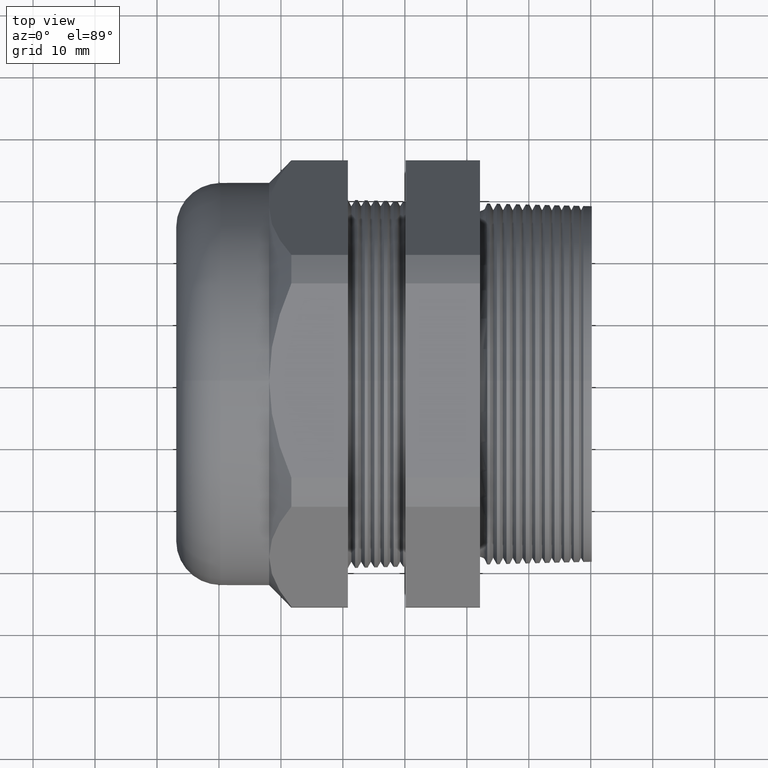
[diagram: clean part render]
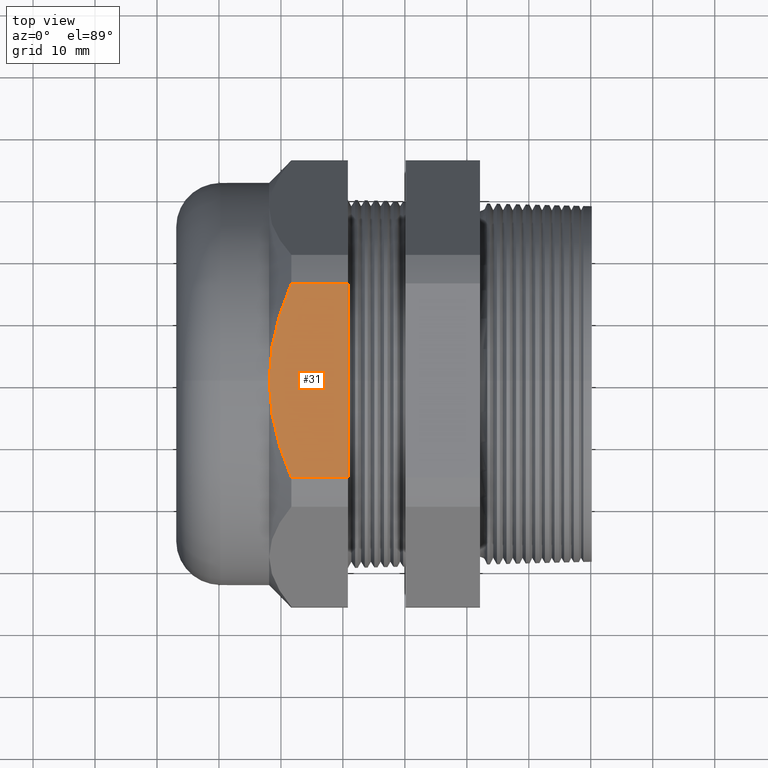
[diagram: same view with one face highlighted and labeled with its STEP entity id]
A machine part, top view. The second image highlights one B-rep face of the part: STEP entity #31.
In plain terms, the highlighted planar face has unit normal (0, 0, 1).
Its self-contained STEP definition (entity closure, byte-faithful):
#31 = ADVANCED_FACE ( 'NONE', ( #1600 ), #1599, .T. ) ;
#38 = EDGE_LOOP ( 'NONE', ( #211, #209, #162, #158, #150 ) ) ;
#149 = VERTEX_POINT ( 'NONE', #1818 ) ;
#150 = ORIENTED_EDGE ( 'NONE', *, *, #151, .F. ) ;
#151 = EDGE_CURVE ( 'NONE', #191, #149, #1817, .T. ) ;
#156 = EDGE_CURVE ( 'NONE', #149, #157, #1803, .T. ) ;
#157 = VERTEX_POINT ( 'NONE', #1799 ) ;
#158 = ORIENTED_EDGE ( 'NONE', *, *, #156, .F. ) ;
#161 = EDGE_CURVE ( 'NONE', #257, #157, #1860, .T. ) ;
#162 = ORIENTED_EDGE ( 'NONE', *, *, #161, .T. ) ;
#191 = VERTEX_POINT ( 'NONE', #1923 ) ;
#192 = EDGE_CURVE ( 'NONE', #191, #194, #1922, .T. ) ;
#194 = VERTEX_POINT ( 'NONE', #1918 ) ;
#209 = ORIENTED_EDGE ( 'NONE', *, *, #210, .T. ) ;
#210 = EDGE_CURVE ( 'NONE', #194, #257, #1955, .T. ) ;
#211 = ORIENTED_EDGE ( 'NONE', *, *, #192, .T. ) ;
#257 = VERTEX_POINT ( 'NONE', #2047 ) ;
#1595 = DIRECTION ( 'NONE',  ( 1.000000000000000000, 0.0000000000000000000, 0.0000000000000000000 ) ) ;
#1596 = DIRECTION ( 'NONE',  ( 0.0000000000000000000, 0.0000000000000000000, 1.000000000000000000 ) ) ;
#1597 = CARTESIAN_POINT ( 'NONE',  ( 0.4000000000000000800, -0.6166625008868301700, 1.280000000000000000 ) ) ;
#1598 = AXIS2_PLACEMENT_3D ( 'NONE', #1597, #1596, #1595 ) ;
#1599 = PLANE ( 'NONE',  #1598 ) ;
#1600 = FACE_OUTER_BOUND ( 'NONE', #38, .T. ) ;
#1799 = CARTESIAN_POINT ( 'NONE',  ( -1.508650000000000300, -0.6166625008868306100, 1.279999999999999800 ) ) ;
#1800 = DIRECTION ( 'NONE',  ( -1.000000000000000000, 0.0000000000000000000, 0.0000000000000000000 ) ) ;
#1801 = VECTOR ( 'NONE', #1800, 39.37007874015748100 ) ;
#1802 = CARTESIAN_POINT ( 'NONE',  ( 0.4000000000000000800, -0.6166625008868306100, 1.279999999999999800 ) ) ;
#1803 = LINE ( 'NONE', #1802, #1801 ) ;
#1814 = DIRECTION ( 'NONE',  ( 0.0000000000000000000, -1.000000000000000000, 0.0000000000000000000 ) ) ;
#1815 = VECTOR ( 'NONE', #1814, 39.37007874015748100 ) ;
#1816 = CARTESIAN_POINT ( 'NONE',  ( -1.149449999999999600, 1.169999999999999900, 1.280000000000000000 ) ) ;
#1817 = LINE ( 'NONE', #1816, #1815 ) ;
#1818 = CARTESIAN_POINT ( 'NONE',  ( -1.149449999999999400, -0.6166625008868306100, 1.279999999999999800 ) ) ;
#1849 = CARTESIAN_POINT ( 'NONE',  ( -1.508650000000000300, -0.6166625008868306100, 1.279999999999999800 ) ) ;
#1850 = CARTESIAN_POINT ( 'NONE',  ( -1.529712581802118400, -0.5681339845891570900, 1.279999999999999800 ) ) ;
#1851 = CARTESIAN_POINT ( 'NONE',  ( -1.549162393605264800, -0.5187018609897641200, 1.280000000000000000 ) ) ;
#1852 = CARTESIAN_POINT ( 'NONE',  ( -1.583916312877919900, -0.4175148469308330200, 1.279999999999999800 ) ) ;
#1853 = CARTESIAN_POINT ( 'NONE',  ( -1.598979408618014000, -0.3664055182703325800, 1.280000000000000000 ) ) ;
#1854 = CARTESIAN_POINT ( 'NONE',  ( -1.635889695340017700, -0.2119016256155370800, 1.280000000000000000 ) ) ;
#1855 = CARTESIAN_POINT ( 'NONE',  ( -1.649449999999999900, -0.1070721285301912700, 1.280000000000000200 ) ) ;
#1856 = CARTESIAN_POINT ( 'NONE',  ( -1.649449999999999600, 0.0000000000000000000, 1.280000000000000000 ) ) ;
#1860 = B_SPLINE_CURVE_WITH_KNOTS ( 'NONE', 3,
 ( #1856, #1855, #1854, #1853, #1852, #1851, #1850, #1849 ),
 .UNSPECIFIED., .F., .F.,
 ( 4, 2, 2, 4 ),
 ( 0.04114897607566777400, 0.04916620051820241900, 0.05317481273946973700, 0.05718342496073705600 ),
 .UNSPECIFIED. ) ;
#1918 = CARTESIAN_POINT ( 'NONE',  ( -1.508650000000000000, 0.6166625008868301700, 1.280000000000000000 ) ) ;
#1919 = DIRECTION ( 'NONE',  ( -1.000000000000000000, 0.0000000000000000000, 0.0000000000000000000 ) ) ;
#1920 = VECTOR ( 'NONE', #1919, 39.37007874015748100 ) ;
#1921 = CARTESIAN_POINT ( 'NONE',  ( 0.4000000000000000800, 0.6166625008868301700, 1.280000000000000000 ) ) ;
#1922 = LINE ( 'NONE', #1921, #1920 ) ;
#1923 = CARTESIAN_POINT ( 'NONE',  ( -1.149449999999999400, 0.6166625008868301700, 1.280000000000000000 ) ) ;
#1938 = CARTESIAN_POINT ( 'NONE',  ( -1.649449999999999600, 0.0000000000000000000, 1.280000000000000000 ) ) ;
#1939 = CARTESIAN_POINT ( 'NONE',  ( -1.649449999999999600, 0.02672213078802230400, 1.280000000000000000 ) ) ;
#1940 = CARTESIAN_POINT ( 'NONE',  ( -1.648604342151621700, 0.05356854984720003900, 1.280000000000000500 ) ) ;
#1941 = CARTESIAN_POINT ( 'NONE',  ( -1.645281383299628000, 0.1067381207527688800, 1.279999999999999800 ) ) ;
#1942 = CARTESIAN_POINT ( 'NONE',  ( -1.642806074829801700, 0.1331626350846555900, 1.279999999999999800 ) ) ;
#1943 = CARTESIAN_POINT ( 'NONE',  ( -1.633063966014042000, 0.2119800413602718500, 1.280000000000000200 ) ) ;
#1944 = CARTESIAN_POINT ( 'NONE',  ( -1.623478795785702200, 0.2639163659910924200, 1.280000000000000200 ) ) ;
#1945 = CARTESIAN_POINT ( 'NONE',  ( -1.598888573868091100, 0.3667216529074577300, 1.280000000000000000 ) ) ;
#1946 = CARTESIAN_POINT ( 'NONE',  ( -1.583886725011120400, 0.4175912459415935800, 1.280000000000000000 ) ) ;
#1947 = CARTESIAN_POINT ( 'NONE',  ( -1.557918468264915000, 0.4932131617928015000, 1.280000000000000000 ) ) ;
#1948 = CARTESIAN_POINT ( 'NONE',  ( -1.548675794523390000, 0.5183220260809855400, 1.280000000000000200 ) ) ;
#1949 = CARTESIAN_POINT ( 'NONE',  ( -1.529318968299051100, 0.5678795841928971900, 1.280000000000000000 ) ) ;
#1950 = CARTESIAN_POINT ( 'NONE',  ( -1.519185095716830500, 0.5923894763832371300, 1.280000000000000200 ) ) ;
#1951 = CARTESIAN_POINT ( 'NONE',  ( -1.508650000000000000, 0.6166625008868301700, 1.280000000000000000 ) ) ;
#1955 = B_SPLINE_CURVE_WITH_KNOTS ( 'NONE', 3,
 ( #1951, #1950, #1949, #1948, #1947, #1946, #1945, #1944, #1943, #1942, #1941, #1940, #1939, #1938 ),
 .UNSPECIFIED., .F., .F.,
 ( 4, 2, 2, 2, 2, 2, 4 ),
 ( 0.02514202277783124400, 0.02714289194006080900, 0.02914376110229037500, 0.03314549942674950600, 0.03714723775120864400, 0.03914810691343820900, 0.04114897607566777400 ),
 .UNSPECIFIED. ) ;
#2047 = CARTESIAN_POINT ( 'NONE',  ( -1.649449999999999600, 0.0000000000000000000, 1.280000000000000000 ) ) ;